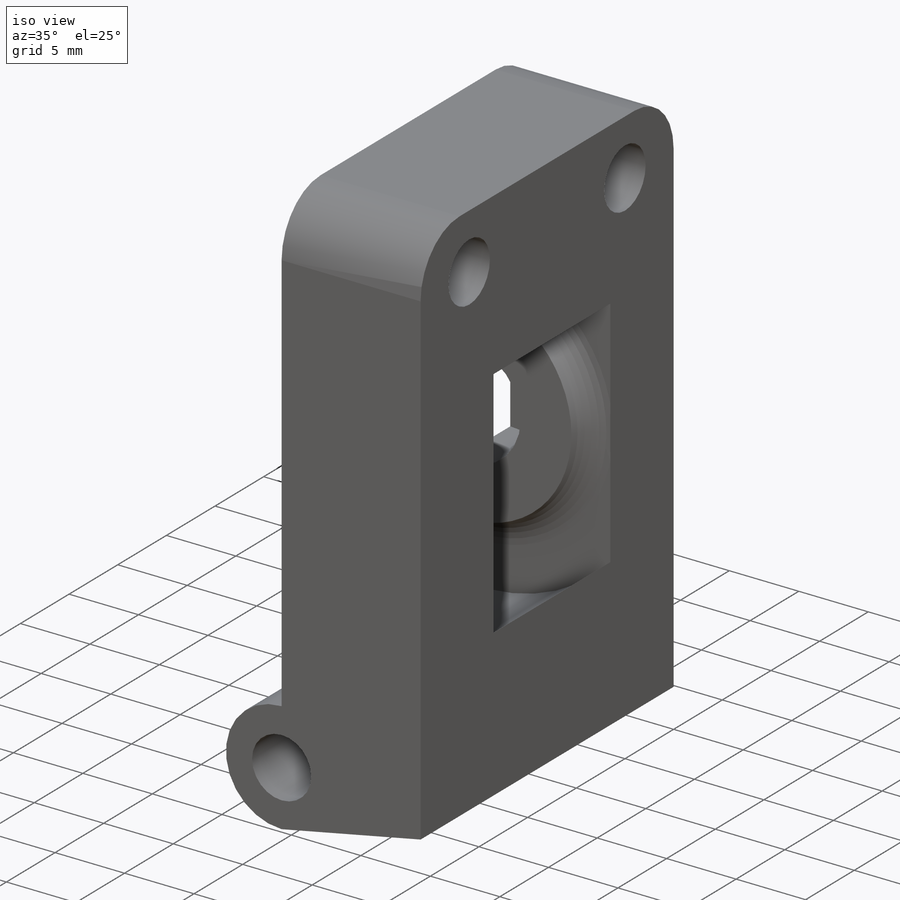
[diagram: iso view]
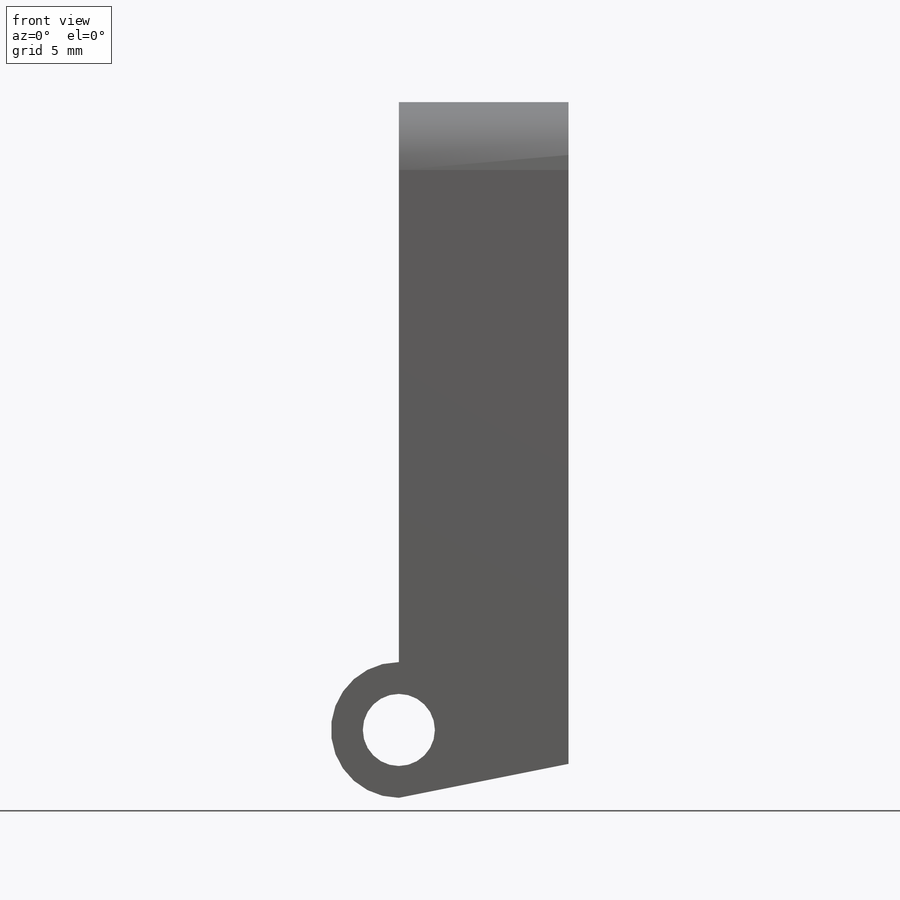
[diagram: front view]
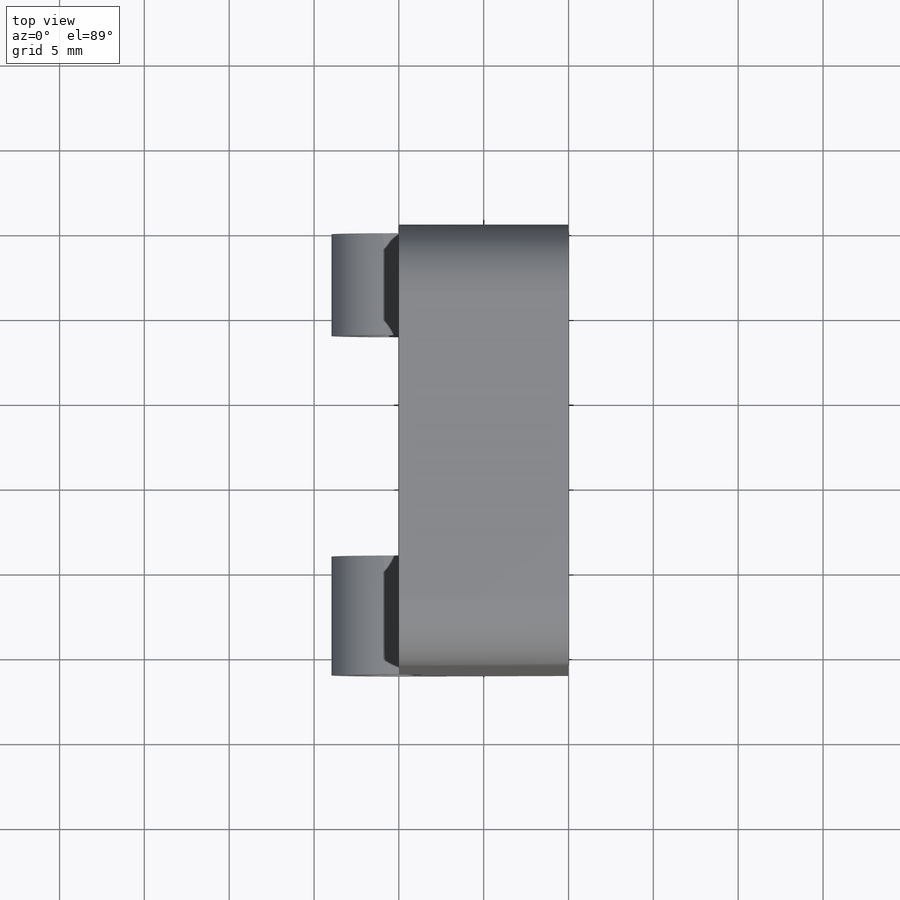
[diagram: top view]
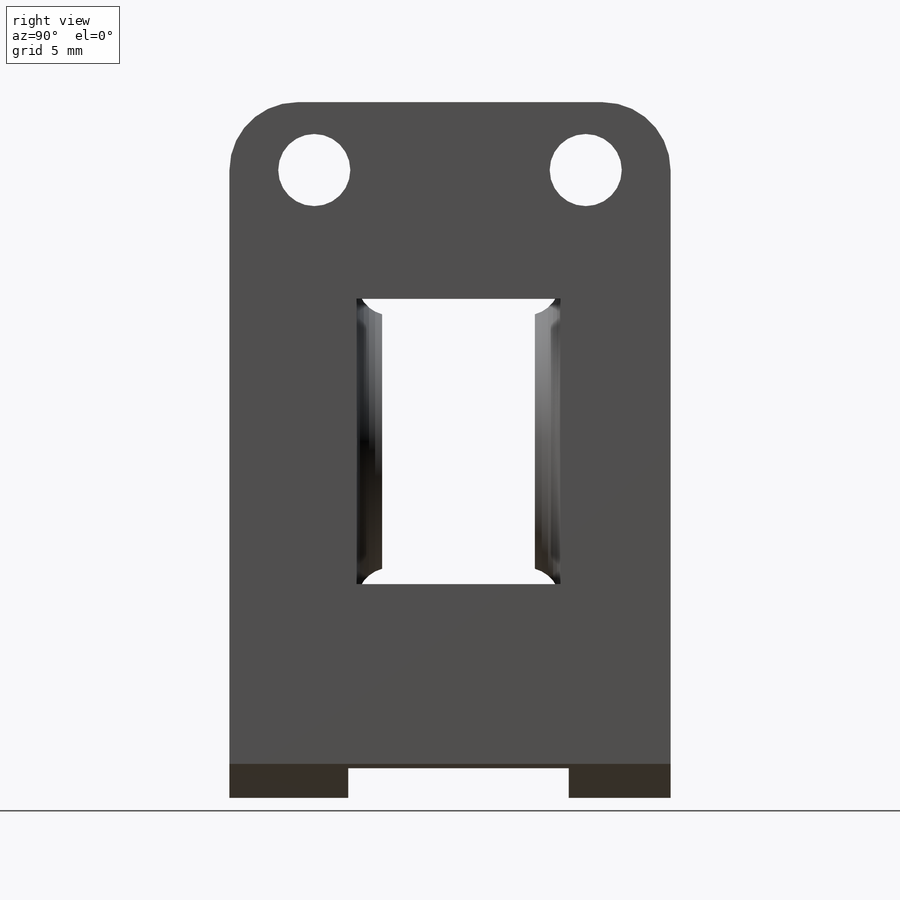
[diagram: right view]
SOLIDWORKS PART (.sldprt)
format: sldprt  version: not decoded by parser v0  size: 462,336 bytes
history: native  units: mm
features: sketch x7, cut_extrude x6, fillet x2, material x1, extrude x1, plane x1 (+11 scaffold rows collapsed)
feature tree (29):
  scaffold x11  (default folders/planes/origin — collapsed)
  material  "Material <not specified>"
  sketch  "Sketch1"  dims[c1.D4=~4.632899mm c1.D5=4.0mm c1.D1=10.0mm c1.D2=44.0mm c1.D3=~6.506597mm c2.D2=33.0mm c2.D3=2.0mm c2.D4=39.0mm]
  extrude  "Boss-Extrude1"  Depth=26mm
  plane  "Plane1"  Offset=12.5mm
  sketch  "Sketch2"  dims[c1.D1=7.7mm c1.D2=4.25mm c1.D5=7.7mm c1.D3=4.0mm c1.D4=17.0mm c2.D5=9.0mm c2.D4=17.0mm c2.D6=4.0mm]
  cut_extrude  "Cut-Extrude1"  [1 undecoded]
  sketch  "Sketch3"  dims[c1.D1=7.7mm c1.D3=4.25mm c1.D2=9.25mm c2.D3=17.0mm]
  cut_extrude  "Cut-Extrude2"  Depth=10mm
  sketch  "Sketch4"  dims[D1=25.0mm D2=15.0mm]
  cut_extrude  "Cut-Extrude3"  Depth=6mm
  sketch  "Sketch5"  dims[D1=15.0mm]
  cut_extrude  "Cut-Extrude4"  Depth=4.5mm
  fillet  "Fillet1"  Radius=2mm
  sketch  "Sketch6"  dims[D1=9.0mm]
  cut_extrude  "Cut-Extrude5"  Depth=6.5mm
  sketch  "Sketch7"  dims[c1.D1=4.25mm c1.D2=4.25mm c1.D3=4.0mm c1.D4=~5.746132mm c2.D4=90.0deg c3.D4=5.0mm c3.D5=4.0mm c3.D6=5.0mm c3.D7=17.0mm]
  cut_extrude  "Cut-Extrude6"  [1 undecoded]
  fillet  "Fillet3"  Radius=4mm
decode coverage: 14 of 16 modeling features carry decoded parameters
note: ~ marks probable driven/reference dimensions
note: 2 parameter values undecoded
note: suppression state not decoded; provenance and decode notes live in map.json
